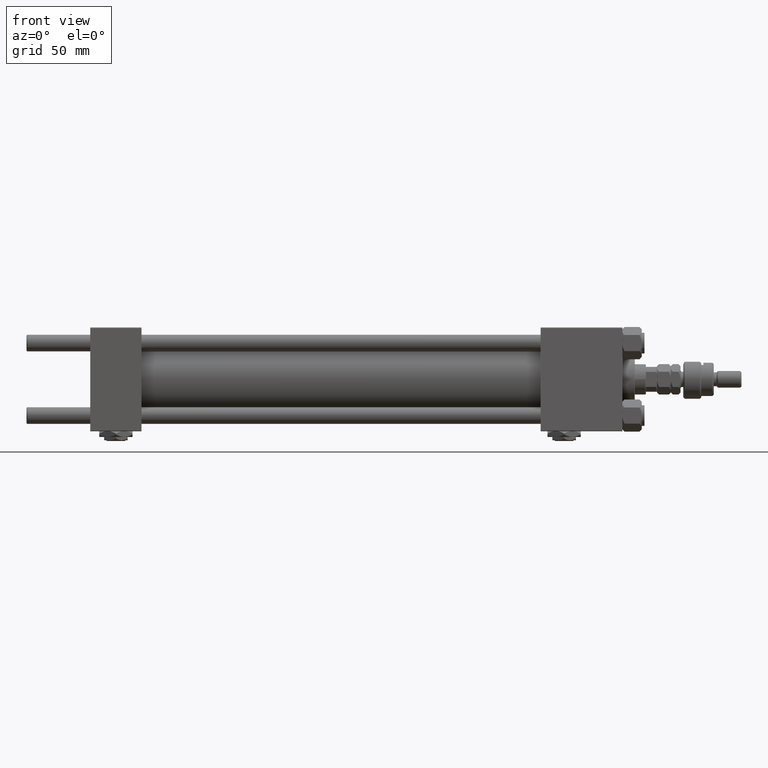
[diagram: clean part render]
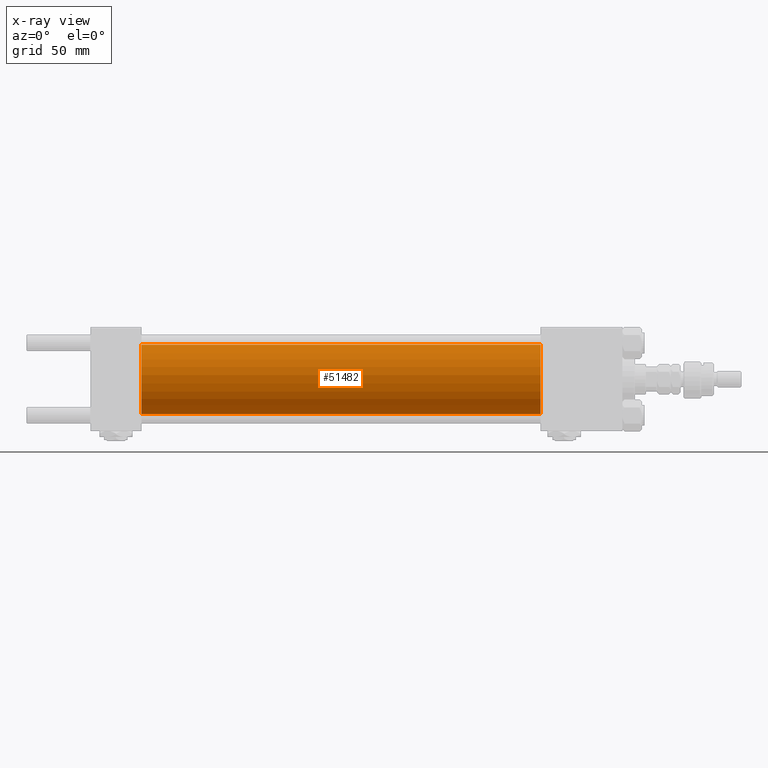
[diagram: x-ray — body ghosted, one internal face saturated and labeled with its STEP entity id]
A machine part, front view, then the same camera in x-ray: the body is ghosted and one INTERNAL B-rep face — a face not visible from any outside direction — is saturated and labeled: STEP entity #51482.
In plain terms, the highlighted cylindrical surface (edge-blend (fillet) strip) has radius 25 mm, axis along (-1, -0, -0).
Its self-contained STEP definition (entity closure, byte-faithful):
#377 = DIRECTION ( 'NONE',  ( 0.000000000000000000, 0.000000000000000000, 1.000000000000000000 ) ) ;
#1193 = CARTESIAN_POINT ( 'NONE',  ( 324.9999999999999432, 0.000000000000000000, 25.00000000000000000 ) ) ;
#2713 = EDGE_LOOP ( 'NONE', ( #24134, #9591, #6232, #45061 ) ) ;
#4690 = CARTESIAN_POINT ( 'NONE',  ( 324.9999999999999432, 3.061616997868383043E-15, -25.00000000000000000 ) ) ;
#6232 = ORIENTED_EDGE ( 'NONE', *, *, #49044, .F. ) ;
#9485 = DIRECTION ( 'NONE',  ( 0.000000000000000000, 0.000000000000000000, -1.000000000000000000 ) ) ;
#9591 = ORIENTED_EDGE ( 'NONE', *, *, #27247, .T. ) ;
#11617 = EDGE_CURVE ( 'NONE', #48910, #46277, #12295, .T. ) ;
#12295 = CIRCLE ( 'NONE', #46731, 25.00000000000000000 ) ;
#12895 = DIRECTION ( 'NONE',  ( 1.000000000000000000, 0.000000000000000000, 0.000000000000000000 ) ) ;
#15000 = LINE ( 'NONE', #39865, #30265 ) ;
#15349 = CARTESIAN_POINT ( 'NONE',  ( 324.9999999999999432, 0.000000000000000000, 25.00000000000000000 ) ) ;
#16693 = CARTESIAN_POINT ( 'NONE',  ( 37.00000000000000000, 0.000000000000000000, 0.000000000000000000 ) ) ;
#17237 = CARTESIAN_POINT ( 'NONE',  ( 37.00000000000000000, 3.061616997868383043E-15, -25.00000000000000000 ) ) ;
#18338 = CARTESIAN_POINT ( 'NONE',  ( 37.00000000000000000, 0.000000000000000000, 25.00000000000000000 ) ) ;
#21344 = CARTESIAN_POINT ( 'NONE',  ( 324.9999999999999432, 0.000000000000000000, 0.000000000000000000 ) ) ;
#21393 = CIRCLE ( 'NONE', #33758, 25.00000000000000000 ) ;
#21479 = DIRECTION ( 'NONE',  ( 0.000000000000000000, 0.000000000000000000, -1.000000000000000000 ) ) ;
#22160 = LINE ( 'NONE', #1193, #29592 ) ;
#24134 = ORIENTED_EDGE ( 'NONE', *, *, #11617, .T. ) ;
#25254 = DIRECTION ( 'NONE',  ( 1.000000000000000000, 0.000000000000000000, 0.000000000000000000 ) ) ;
#25493 = CYLINDRICAL_SURFACE ( 'NONE', #38994, 25.00000000000000000 ) ;
#27247 = EDGE_CURVE ( 'NONE', #46277, #49039, #15000, .T. ) ;
#29592 = VECTOR ( 'NONE', #47011, 1000.000000000000000 ) ;
#30265 = VECTOR ( 'NONE', #31868, 1000.000000000000000 ) ;
#31868 = DIRECTION ( 'NONE',  ( -1.000000000000000000, -0.000000000000000000, -0.000000000000000000 ) ) ;
#33533 = FACE_OUTER_BOUND ( 'NONE', #2713, .T. ) ;
#33758 = AXIS2_PLACEMENT_3D ( 'NONE', #16693, #25254, #9485 ) ;
#35160 = EDGE_CURVE ( 'NONE', #48910, #50061, #22160, .T. ) ;
#38061 = CARTESIAN_POINT ( 'NONE',  ( 324.9999999999999432, 0.000000000000000000, 0.000000000000000000 ) ) ;
#38208 = DIRECTION ( 'NONE',  ( -1.000000000000000000, -0.000000000000000000, -0.000000000000000000 ) ) ;
#38994 = AXIS2_PLACEMENT_3D ( 'NONE', #21344, #38208, #377 ) ;
#39865 = CARTESIAN_POINT ( 'NONE',  ( 324.9999999999999432, 3.061616997868383043E-15, -25.00000000000000000 ) ) ;
#45061 = ORIENTED_EDGE ( 'NONE', *, *, #35160, .F. ) ;
#46277 = VERTEX_POINT ( 'NONE', #4690 ) ;
#46731 = AXIS2_PLACEMENT_3D ( 'NONE', #38061, #12895, #21479 ) ;
#47011 = DIRECTION ( 'NONE',  ( -1.000000000000000000, -0.000000000000000000, -0.000000000000000000 ) ) ;
#48910 = VERTEX_POINT ( 'NONE', #15349 ) ;
#49039 = VERTEX_POINT ( 'NONE', #17237 ) ;
#49044 = EDGE_CURVE ( 'NONE', #50061, #49039, #21393, .T. ) ;
#50061 = VERTEX_POINT ( 'NONE', #18338 ) ;
#51482 = ADVANCED_FACE ( 'NONE', ( #33533 ), #25493, .F. ) ;